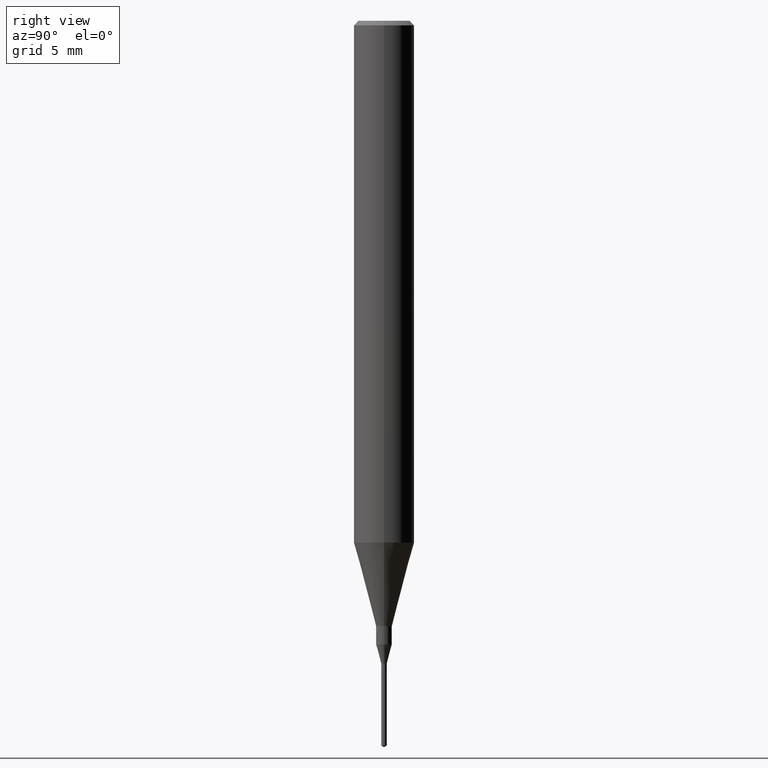
[diagram: clean part render]
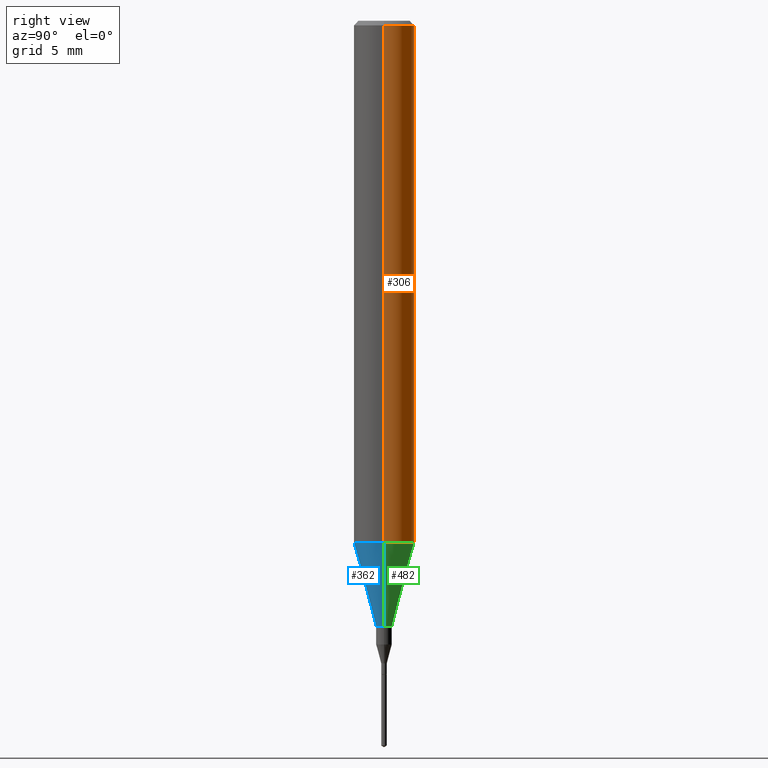
[diagram: same view with three faces highlighted in distinct colors, each labeled with its STEP entity id]
A machine part, right view with three faces highlighted in distinct colors.
Their STEP definitions:

[orange] entity #306 — the highlighted cylindrical surface (edge-blend (fillet) strip) has radius 1.5875 mm, axis along (-0, 0, 1).
#2 = EDGE_CURVE ( 'NONE', #162, #6, #493, .T. ) ;
#5 = CARTESIAN_POINT ( 'NONE',  ( 0.000000000000000000, 0.000000000000000000, 0.000000000000000000 ) ) ;
#6 = VERTEX_POINT ( 'NONE', #174 ) ;
#52 = DIRECTION ( 'NONE',  ( -2.445468806185136597E-29, 3.491481338843145583E-15, 1.000000000000000000 ) ) ;
#78 = CARTESIAN_POINT ( 'NONE',  ( -0.06250000000000006939, 4.440892098500631092E-16, -3.074334431409319267E-30 ) ) ;
#87 = VECTOR ( 'NONE', #541, 39.37007874015748143 ) ;
#133 = ORIENTED_EDGE ( 'NONE', *, *, #489, .F. ) ;
#145 = CIRCLE ( 'NONE', #565, 0.06250000000000012490 ) ;
#146 = CARTESIAN_POINT ( 'NONE',  ( 2.634730117954813298E-29, -3.761696332605275695E-15, -1.077392650149939346 ) ) ;
#155 = DIRECTION ( 'NONE',  ( 1.000000000000000000, -6.982962677686266711E-15, 0.000000000000000000 ) ) ;
#160 = FACE_OUTER_BOUND ( 'NONE', #268, .T. ) ;
#162 = VERTEX_POINT ( 'NONE', #178 ) ;
#174 = CARTESIAN_POINT ( 'NONE',  ( -0.06250000000000000000, -1.453125275228401137E-15, -0.009375000000000063838 ) ) ;
#178 = CARTESIAN_POINT ( 'NONE',  ( -0.06250000000000012490, -3.317607122755211895E-15, -1.077392650149939346 ) ) ;
#241 = ORIENTED_EDGE ( 'NONE', *, *, #459, .T. ) ;
#245 = AXIS2_PLACEMENT_3D ( 'NONE', #5, #405, #258 ) ;
#251 = DIRECTION ( 'NONE',  ( 1.000000000000000000, -6.982962677686264344E-15, 0.000000000000000000 ) ) ;
#258 = DIRECTION ( 'NONE',  ( 1.000000000000000000, -6.982962677686266711E-15, 4.876176775795935793E-29 ) ) ;
#268 = EDGE_LOOP ( 'NONE', ( #241, #382, #354, #133 ) ) ;
#306 = ADVANCED_FACE ( 'NONE', ( #160 ), #322, .T. ) ;
#311 = VECTOR ( 'NONE', #400, 39.37007874015748143 ) ;
#322 = CYLINDRICAL_SURFACE ( 'NONE', #245, 0.06250000000000006939 ) ;
#334 = DIRECTION ( 'NONE',  ( -2.445468806185136597E-29, 3.491481338843145583E-15, 1.000000000000000000 ) ) ;
#354 = ORIENTED_EDGE ( 'NONE', *, *, #420, .F. ) ;
#375 = AXIS2_PLACEMENT_3D ( 'NONE', #452, #334, #155 ) ;
#382 = ORIENTED_EDGE ( 'NONE', *, *, #2, .T. ) ;
#400 = DIRECTION ( 'NONE',  ( -2.445468806185136877E-29, 3.491481338843145188E-15, 1.000000000000000000 ) ) ;
#405 = DIRECTION ( 'NONE',  ( -2.445468806185136597E-29, 3.491481338843145583E-15, 1.000000000000000000 ) ) ;
#420 = EDGE_CURVE ( 'NONE', #550, #6, #483, .T. ) ;
#431 = CARTESIAN_POINT ( 'NONE',  ( 0.06250000000000012490, -4.198131499960668153E-15, -1.077392650149939346 ) ) ;
#444 = CARTESIAN_POINT ( 'NONE',  ( 0.06250000000000000000, -4.691678049070463404E-16, -0.009375000000000063838 ) ) ;
#452 = CARTESIAN_POINT ( 'NONE',  ( 2.292627005798581061E-31, -3.273263755165471417E-17, -0.009375000000000063838 ) ) ;
#459 = EDGE_CURVE ( 'NONE', #463, #162, #145, .T. ) ;
#463 = VERTEX_POINT ( 'NONE', #431 ) ;
#473 = LINE ( 'NONE', #534, #311 ) ;
#483 = CIRCLE ( 'NONE', #375, 0.06250000000000000000 ) ;
#489 = EDGE_CURVE ( 'NONE', #463, #550, #473, .T. ) ;
#493 = LINE ( 'NONE', #78, #87 ) ;
#534 = CARTESIAN_POINT ( 'NONE',  ( 0.06250000000000006939, -4.364351673553921624E-16, 3.047610484872463374E-30 ) ) ;
#541 = DIRECTION ( 'NONE',  ( -2.445468806185136877E-29, 3.491481338843145188E-15, 1.000000000000000000 ) ) ;
#550 = VERTEX_POINT ( 'NONE', #444 ) ;
#565 = AXIS2_PLACEMENT_3D ( 'NONE', #146, #52, #251 ) ;

[blue] entity #362 — the highlighted conical surface has half-angle 15 deg.
#1 = ORIENTED_EDGE ( 'NONE', *, *, #527, .F. ) ;
#9 = CIRCLE ( 'NONE', #370, 0.06250000000000012490 ) ;
#27 = DIRECTION ( 'NONE',  ( 0.2588190451025214611, 1.565188264969621573E-15, 0.9659258262890682012 ) ) ;
#48 = VERTEX_POINT ( 'NONE', #235 ) ;
#66 = DIRECTION ( 'NONE',  ( -2.445468806185136597E-29, 3.491481338843145583E-15, 1.000000000000000000 ) ) ;
#77 = ORIENTED_EDGE ( 'NONE', *, *, #295, .F. ) ;
#110 = ORIENTED_EDGE ( 'NONE', *, *, #316, .T. ) ;
#130 = AXIS2_PLACEMENT_3D ( 'NONE', #305, #406, #584 ) ;
#162 = VERTEX_POINT ( 'NONE', #178 ) ;
#165 = EDGE_CURVE ( 'NONE', #48, #547, #560, .T. ) ;
#169 = FACE_OUTER_BOUND ( 'NONE', #228, .T. ) ;
#178 = CARTESIAN_POINT ( 'NONE',  ( -0.06250000000000012490, -3.317607122755211895E-15, -1.077392650149939346 ) ) ;
#228 = EDGE_LOOP ( 'NONE', ( #1, #380, #110, #77 ) ) ;
#235 = CARTESIAN_POINT ( 'NONE',  ( -0.01624999999999999709, -4.314900985349611108E-15, -1.250000000000000000 ) ) ;
#290 = VECTOR ( 'NONE', #451, 39.37007874015747433 ) ;
#295 = EDGE_CURVE ( 'NONE', #162, #463, #9, .T. ) ;
#305 = CARTESIAN_POINT ( 'NONE',  ( 2.634730117954813298E-29, -3.761696332605275695E-15, -1.077392650149939346 ) ) ;
#316 = EDGE_CURVE ( 'NONE', #547, #463, #435, .T. ) ;
#326 = CARTESIAN_POINT ( 'NONE',  ( 3.056836007731421306E-29, -4.364351673553932471E-15, -1.250000000000000000 ) ) ;
#350 = CARTESIAN_POINT ( 'NONE',  ( 0.06250000000000012490, -4.198131499960668153E-15, -1.077392650149939346 ) ) ;
#357 = VECTOR ( 'NONE', #27, 39.37007874015747433 ) ;
#362 = ADVANCED_FACE ( 'NONE', ( #169 ), #553, .T. ) ;
#367 = DIRECTION ( 'NONE',  ( -2.445468806185136597E-29, 3.491481338843145583E-15, 1.000000000000000000 ) ) ;
#370 = AXIS2_PLACEMENT_3D ( 'NONE', #419, #66, #578 ) ;
#380 = ORIENTED_EDGE ( 'NONE', *, *, #165, .T. ) ;
#406 = DIRECTION ( 'NONE',  ( -2.445468806185136597E-29, 3.491481338843145583E-15, 1.000000000000000000 ) ) ;
#414 = AXIS2_PLACEMENT_3D ( 'NONE', #326, #367, #460 ) ;
#419 = CARTESIAN_POINT ( 'NONE',  ( 2.634730117954813298E-29, -3.761696332605275695E-15, -1.077392650149939346 ) ) ;
#431 = CARTESIAN_POINT ( 'NONE',  ( 0.06250000000000012490, -4.198131499960668153E-15, -1.077392650149939346 ) ) ;
#435 = LINE ( 'NONE', #350, #357 ) ;
#436 = CARTESIAN_POINT ( 'NONE',  ( -0.06250000000000012490, -3.317607122755211895E-15, -1.077392650149939346 ) ) ;
#451 = DIRECTION ( 'NONE',  ( -0.2588190451025214611, 5.211531920934551042E-15, 0.9659258262890682012 ) ) ;
#460 = DIRECTION ( 'NONE',  ( 1.000000000000000000, -6.982962677686288799E-15, 0.000000000000000000 ) ) ;
#463 = VERTEX_POINT ( 'NONE', #431 ) ;
#488 = LINE ( 'NONE', #436, #290 ) ;
#527 = EDGE_CURVE ( 'NONE', #48, #162, #488, .T. ) ;
#530 = CARTESIAN_POINT ( 'NONE',  ( 0.01624999999999999709, -4.477824817066334148E-15, -1.250000000000000000 ) ) ;
#547 = VERTEX_POINT ( 'NONE', #530 ) ;
#553 = CONICAL_SURFACE ( 'NONE', #130, 0.06250000000000012490, 0.2617993877991501295 ) ;
#560 = CIRCLE ( 'NONE', #414, 0.01624999999999999709 ) ;
#578 = DIRECTION ( 'NONE',  ( 1.000000000000000000, -6.982962677686264344E-15, 0.000000000000000000 ) ) ;
#584 = DIRECTION ( 'NONE',  ( 1.000000000000000000, -6.982962677686264344E-15, 0.000000000000000000 ) ) ;

[green] entity #482 — the highlighted conical surface has half-angle 15 deg.
#8 = ORIENTED_EDGE ( 'NONE', *, *, #316, .F. ) ;
#27 = DIRECTION ( 'NONE',  ( 0.2588190451025214611, 1.565188264969621573E-15, 0.9659258262890682012 ) ) ;
#48 = VERTEX_POINT ( 'NONE', #235 ) ;
#52 = DIRECTION ( 'NONE',  ( -2.445468806185136597E-29, 3.491481338843145583E-15, 1.000000000000000000 ) ) ;
#99 = CIRCLE ( 'NONE', #520, 0.01624999999999999709 ) ;
#109 = DIRECTION ( 'NONE',  ( 1.000000000000000000, -6.982962677686264344E-15, 0.000000000000000000 ) ) ;
#145 = CIRCLE ( 'NONE', #565, 0.06250000000000012490 ) ;
#146 = CARTESIAN_POINT ( 'NONE',  ( 2.634730117954813298E-29, -3.761696332605275695E-15, -1.077392650149939346 ) ) ;
#162 = VERTEX_POINT ( 'NONE', #178 ) ;
#178 = CARTESIAN_POINT ( 'NONE',  ( -0.06250000000000012490, -3.317607122755211895E-15, -1.077392650149939346 ) ) ;
#235 = CARTESIAN_POINT ( 'NONE',  ( -0.01624999999999999709, -4.314900985349611108E-15, -1.250000000000000000 ) ) ;
#251 = DIRECTION ( 'NONE',  ( 1.000000000000000000, -6.982962677686264344E-15, 0.000000000000000000 ) ) ;
#256 = EDGE_CURVE ( 'NONE', #547, #48, #99, .T. ) ;
#273 = ORIENTED_EDGE ( 'NONE', *, *, #527, .T. ) ;
#289 = FACE_OUTER_BOUND ( 'NONE', #461, .T. ) ;
#290 = VECTOR ( 'NONE', #451, 39.37007874015747433 ) ;
#302 = DIRECTION ( 'NONE',  ( -2.445468806185136597E-29, 3.491481338843145583E-15, 1.000000000000000000 ) ) ;
#316 = EDGE_CURVE ( 'NONE', #547, #463, #435, .T. ) ;
#341 = CARTESIAN_POINT ( 'NONE',  ( 2.634730117954813298E-29, -3.761696332605275695E-15, -1.077392650149939346 ) ) ;
#350 = CARTESIAN_POINT ( 'NONE',  ( 0.06250000000000012490, -4.198131499960668153E-15, -1.077392650149939346 ) ) ;
#352 = DIRECTION ( 'NONE',  ( 1.000000000000000000, -6.982962677686288799E-15, 0.000000000000000000 ) ) ;
#357 = VECTOR ( 'NONE', #27, 39.37007874015747433 ) ;
#385 = ORIENTED_EDGE ( 'NONE', *, *, #459, .F. ) ;
#417 = CONICAL_SURFACE ( 'NONE', #424, 0.06250000000000012490, 0.2617993877991501295 ) ;
#424 = AXIS2_PLACEMENT_3D ( 'NONE', #341, #525, #109 ) ;
#431 = CARTESIAN_POINT ( 'NONE',  ( 0.06250000000000012490, -4.198131499960668153E-15, -1.077392650149939346 ) ) ;
#435 = LINE ( 'NONE', #350, #357 ) ;
#436 = CARTESIAN_POINT ( 'NONE',  ( -0.06250000000000012490, -3.317607122755211895E-15, -1.077392650149939346 ) ) ;
#451 = DIRECTION ( 'NONE',  ( -0.2588190451025214611, 5.211531920934551042E-15, 0.9659258262890682012 ) ) ;
#459 = EDGE_CURVE ( 'NONE', #463, #162, #145, .T. ) ;
#461 = EDGE_LOOP ( 'NONE', ( #471, #273, #385, #8 ) ) ;
#463 = VERTEX_POINT ( 'NONE', #431 ) ;
#471 = ORIENTED_EDGE ( 'NONE', *, *, #256, .T. ) ;
#482 = ADVANCED_FACE ( 'NONE', ( #289 ), #417, .T. ) ;
#488 = LINE ( 'NONE', #436, #290 ) ;
#520 = AXIS2_PLACEMENT_3D ( 'NONE', #528, #302, #352 ) ;
#525 = DIRECTION ( 'NONE',  ( -2.445468806185136597E-29, 3.491481338843145583E-15, 1.000000000000000000 ) ) ;
#527 = EDGE_CURVE ( 'NONE', #48, #162, #488, .T. ) ;
#528 = CARTESIAN_POINT ( 'NONE',  ( 3.056836007731421306E-29, -4.364351673553932471E-15, -1.250000000000000000 ) ) ;
#530 = CARTESIAN_POINT ( 'NONE',  ( 0.01624999999999999709, -4.477824817066334148E-15, -1.250000000000000000 ) ) ;
#547 = VERTEX_POINT ( 'NONE', #530 ) ;
#565 = AXIS2_PLACEMENT_3D ( 'NONE', #146, #52, #251 ) ;